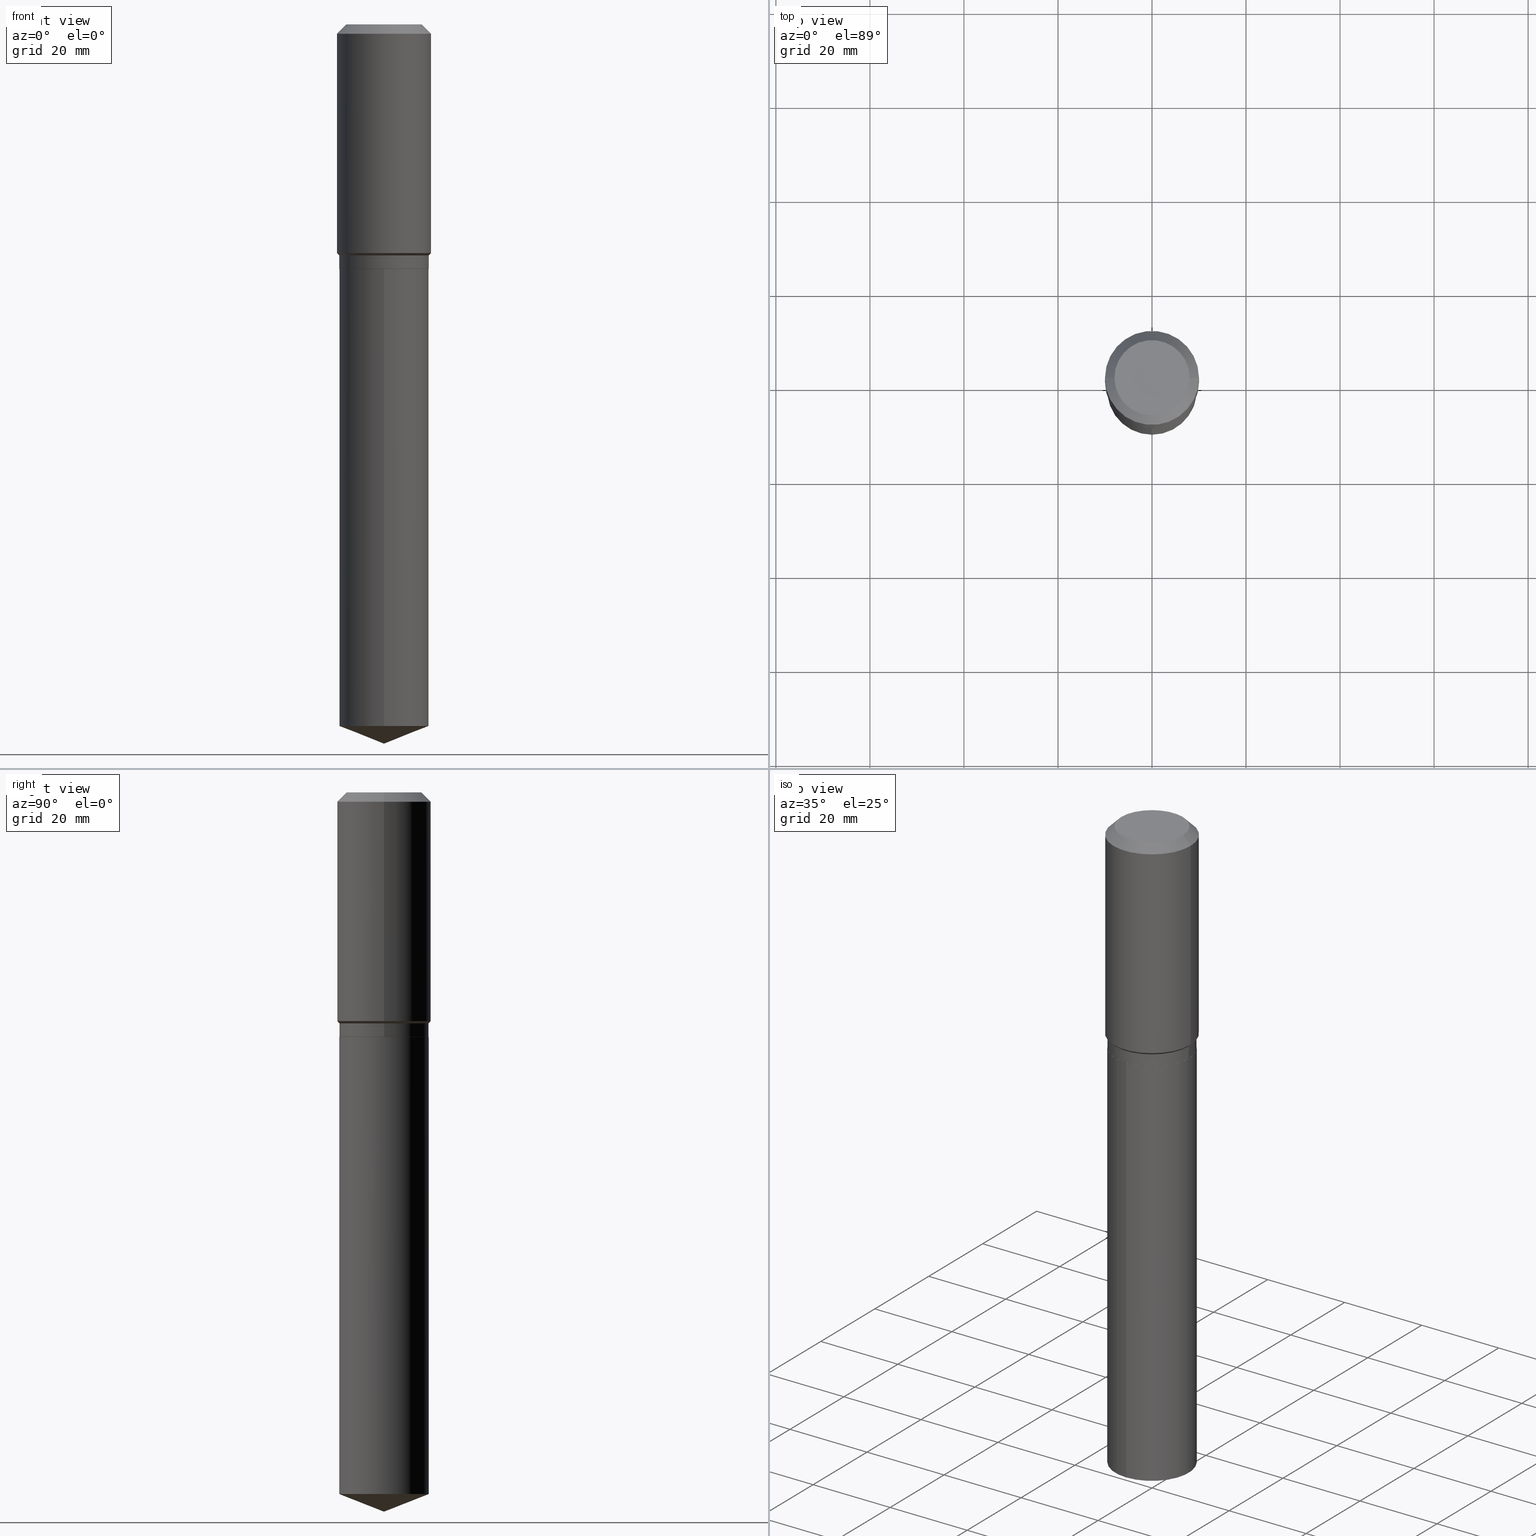
[diagram: canonical four-view strip — front | top / right | iso, engineering-drawing reading convention]
A machine part, canonical four-view strip (front | top / right | iso — engineering-drawing reading convention). The complete STEP part file that produces these views, byte-faithful:
ISO-10303-21;
HEADER;
FILE_DESCRIPTION (( 'STEP AP203' ),
    '1' );
FILE_NAME ('56471.STEP',
    '2024-04-24T18:11:45',
    ( '' ),
    ( '' ),
    'SwSTEP 2.0',
    'SolidWorks 2023',
    '' );
FILE_SCHEMA (( 'CONFIG_CONTROL_DESIGN' ));
ENDSEC;

DATA;
#1 = AXIS2_PLACEMENT_3D ( 'NONE', #132, #178, #333 ) ;
#2 = CC_DESIGN_DATE_AND_TIME_ASSIGNMENT ( #422, #16, ( #370 ) ) ;
#3 = CARTESIAN_POINT ( 'NONE',  ( 1.925562137990188729E-30, -2.749192406205110629E-16, -0.07874000000000049015 ) ) ;
#4 = VERTEX_POINT ( 'NONE', #54 ) ;
#5 = FACE_OUTER_BOUND ( 'NONE', #416, .T. ) ;
#6 = DIRECTION ( 'NONE',  ( -6.982962677686265922E-15, -1.000000000000000000, 3.498627837350006195E-15 ) ) ;
#7 = CARTESIAN_POINT ( 'NONE',  ( 0.3745000000000000551, -9.764276712208733992E-15, -2.047600000000000531 ) ) ;
#8 = CARTESIAN_POINT ( 'NONE',  ( 4.732226686848858615E-29, -6.756365538795372113E-15, -1.935100000000000264 ) ) ;
#9 = LOCAL_TIME ( 14, 11, 45.00000000000000000, #414 ) ;
#10 = EDGE_LOOP ( 'NONE', ( #456, #379, #180, #446 ) ) ;
#11 = CARTESIAN_POINT ( 'NONE',  ( 4.732226686848858615E-29, -6.756365538795372113E-15, -1.935100000000000264 ) ) ;
#12 = FACE_OUTER_BOUND ( 'NONE', #68, .T. ) ;
#13 = APPLICATION_CONTEXT ( 'configuration controlled 3d designs of mechanical parts and assemblies' ) ;
#14 = ADVANCED_FACE ( 'NONE', ( #12 ), #161, .T. ) ;
#15 = MANIFOLD_SOLID_BREP ( 'Body-Move/Copy2[2]', #214 ) ;
#16 = DATE_TIME_ROLE ( 'creation_date' ) ;
#17 = ORIENTED_EDGE ( 'NONE', *, *, #96, .T. ) ;
#18 = DIRECTION ( 'NONE',  ( -2.445291597268373116E-29, 3.491735112098055951E-15, 1.000000000000000000 ) ) ;
#19 = ORIENTED_EDGE ( 'NONE', *, *, #158, .T. ) ;
#20 = CIRCLE ( 'NONE', #126, 0.3937000000000000499 ) ;
#21 = DIRECTION ( 'NONE',  ( 1.000000000000000000, -6.982962677686266711E-15, 4.876176775795935793E-29 ) ) ;
#22 = DIRECTION ( 'NONE',  ( -2.445468806185136597E-29, 3.491481338843145583E-15, 1.000000000000000000 ) ) ;
#23 = PERSON ( 'UNSPECIFIED', 'UNSPECIFIED', 'UNSPECIFIED', ('UNSPECIFIED'), ('UNSPECIFIED'), ('UNSPECIFIED') ) ;
#24 =( NAMED_UNIT ( * ) PLANE_ANGLE_UNIT ( ) SI_UNIT ( $, .RADIAN. ) );
#25 = DIRECTION ( 'NONE',  ( -2.445468806185136597E-29, 3.491481338843145583E-15, 1.000000000000000000 ) ) ;
#26 = CARTESIAN_POINT ( 'NONE',  ( -9.427742298522567634E-47, 1.346031739168368355E-32, 3.855188123715870730E-18 ) ) ;
#27 = DIRECTION ( 'NONE',  ( -0.7071067811865453523, 2.468850131082234184E-15, -0.7071067811865496822 ) ) ;
#28 = APPROVAL_ROLE ( '' ) ;
#29 = VECTOR ( 'NONE', #106, 39.37007874015747433 ) ;
#30 = ADVANCED_FACE ( 'NONE', ( #160 ), #166, .T. ) ;
#31 = EDGE_CURVE ( 'NONE', #48, #217, #90, .T. ) ;
#32 = DIRECTION ( 'NONE',  ( -2.445468806185136597E-29, 3.491481338843145583E-15, 1.000000000000000000 ) ) ;
#33 = DIRECTION ( 'NONE',  ( -6.982962677686265922E-15, -1.000000000000000000, 2.913971193241880372E-15 ) ) ;
#34 = ORIENTED_EDGE ( 'NONE', *, *, #37, .T. ) ;
#35 = AXIS2_PLACEMENT_3D ( 'NONE', #363, #352, #391 ) ;
#36 = CC_DESIGN_APPROVAL ( #291, ( #370 ) ) ;
#37 = EDGE_CURVE ( 'NONE', #88, #48, #390, .T. ) ;
#38 = DIRECTION ( 'NONE',  ( 0.7071067811865474617, -2.468850131082256666E-15, 0.7071067811865474617 ) ) ;
#39 = VERTEX_POINT ( 'NONE', #453 ) ;
#40 = ORIENTED_EDGE ( 'NONE', *, *, #202, .F. ) ;
#41 = EDGE_CURVE ( 'NONE', #217, #4, #235, .T. ) ;
#42 = AXIS2_PLACEMENT_3D ( 'NONE', #410, #140, #69 ) ;
#43 = DIRECTION ( 'NONE',  ( 1.000000000000000000, -6.982962677686269077E-15, 0.000000000000000000 ) ) ;
#44 = CLOSED_SHELL ( 'NONE', ( #115, #30, #457, #440, #278 ) ) ;
#45 = VERTEX_POINT ( 'NONE', #201 ) ;
#46 = DIRECTION ( 'NONE',  ( -2.445291597268373116E-29, 3.491735112098055951E-15, 1.000000000000000000 ) ) ;
#47 = DIRECTION ( 'NONE',  ( -2.445291597268373116E-29, 3.491735112098055951E-15, 1.000000000000000000 ) ) ;
#48 = VERTEX_POINT ( 'NONE', #359 ) ;
#49 = FACE_OUTER_BOUND ( 'NONE', #488, .T. ) ;
#50 = ORIENTED_EDGE ( 'NONE', *, *, #397, .T. ) ;
#51 = CIRCLE ( 'NONE', #231, 0.3937000000000000499 ) ;
#52 = DIRECTION ( 'NONE',  ( -0.7071067811865474617, 7.493145998870352582E-15, 0.7071067811865474617 ) ) ;
#53 = ORGANIZATION ( 'UNSPECIFIED', 'UNSPECIFIED', '' ) ;
#54 = CARTESIAN_POINT ( 'NONE',  ( -0.3937000000000002164, -3.893668087071488360E-15, -1.916400000000000103 ) ) ;
#55 = APPROVAL_STATUS ( 'not_yet_approved' ) ;
#56 = DIRECTION ( 'NONE',  ( -1.000000000000000000, 6.982962677686265922E-15, 0.000000000000000000 ) ) ;
#57 = CIRCLE ( 'NONE', #119, 0.3149600000000000177 ) ;
#58 = CARTESIAN_POINT ( 'NONE',  ( 4.732226686848858615E-29, -6.756365538795372113E-15, -1.935100000000000264 ) ) ;
#59 = FACE_OUTER_BOUND ( 'NONE', #67, .T. ) ;
#60 =( NAMED_UNIT ( * ) SI_UNIT ( $, .STERADIAN. ) SOLID_ANGLE_UNIT ( ) );
#61 = ORIENTED_EDGE ( 'NONE', *, *, #41, .F. ) ;
#62 = FACE_OUTER_BOUND ( 'NONE', #382, .T. ) ;
#63 = EDGE_CURVE ( 'NONE', #324, #274, #268, .T. ) ;
#64 = VECTOR ( 'NONE', #451, 39.37007874015748143 ) ;
#65 = VECTOR ( 'NONE', #276, 39.37007874015748143 ) ;
#66 = APPROVAL_PERSON_ORGANIZATION ( #187, #78, #111 ) ;
#67 = EDGE_LOOP ( 'NONE', ( #412, #50, #208 ) ) ;
#68 = EDGE_LOOP ( 'NONE', ( #34, #225, #279, #72 ) ) ;
#69 = DIRECTION ( 'NONE',  ( 1.000000000000000000, -6.982962677686265922E-15, 0.000000000000000000 ) ) ;
#70 = CALENDAR_DATE ( 2024, 24, 4 ) ;
#71 = VECTOR ( 'NONE', #474, 39.37007874015748143 ) ;
#72 = ORIENTED_EDGE ( 'NONE', *, *, #428, .F. ) ;
#73 = ADVANCED_FACE ( 'NONE', ( #393 ), #230, .T. ) ;
#74 = LINE ( 'NONE', #408, #102 ) ;
#75 = ORIENTED_EDGE ( 'NONE', *, *, #31, .F. ) ;
#76 = DIRECTION ( 'NONE',  ( 0.7071067811864992780, -2.468850131081751401E-15, 0.7071067811865957564 ) ) ;
#77 = CARTESIAN_POINT ( 'NONE',  ( 4.686496420173195799E-29, -6.691074837759004724E-15, -1.916400000000000103 ) ) ;
#78 = APPROVAL ( #384, 'UNSPECIFIED' ) ;
#79 = EDGE_LOOP ( 'NONE', ( #427, #297, #348, #399 ) ) ;
#80 = DIRECTION ( 'NONE',  ( -2.445468806185136597E-29, 3.491481338843145583E-15, 1.000000000000000000 ) ) ;
#81 = DIRECTION ( 'NONE',  ( -2.445291597268373116E-29, 3.491735112098055951E-15, 1.000000000000000000 ) ) ;
#82 = ORIENTED_EDGE ( 'NONE', *, *, #123, .F. ) ;
#83 = ADVANCED_FACE ( 'NONE', ( #49 ), #197, .F. ) ;
#84 = CIRCLE ( 'NONE', #327, 0.3749999999999999445 ) ;
#85 = LOCAL_TIME ( 14, 11, 45.00000000000000000, #205 ) ;
#86 = ORIENTED_EDGE ( 'NONE', *, *, #123, .T. ) ;
#87 = DIRECTION ( 'NONE',  ( -2.445468806185136597E-29, 3.491481338843145583E-15, 1.000000000000000000 ) ) ;
#88 = VERTEX_POINT ( 'NONE', #317 ) ;
#89 = PERSON_AND_ORGANIZATION ( #23, #53 ) ;
#90 = LINE ( 'NONE', #153, #65 ) ;
#91 = CARTESIAN_POINT ( 'NONE',  ( 0.3749999999999999445, -9.374976542927722130E-15, -1.935100000000000264 ) ) ;
#92 = EDGE_LOOP ( 'NONE', ( #485, #447, #392, #417 ) ) ;
#93 = ADVANCED_FACE ( 'NONE', ( #362 ), #260, .T. ) ;
#94 = AXIS2_PLACEMENT_3D ( 'NONE', #436, #22, #431 ) ;
#95 = SECURITY_CLASSIFICATION_LEVEL ( 'unclassified' ) ;
#96 = EDGE_CURVE ( 'NONE', #217, #486, #84, .T. ) ;
#97 = FACE_OUTER_BOUND ( 'NONE', #407, .T. ) ;
#98 = AXIS2_PLACEMENT_3D ( 'NONE', #120, #87, #236 ) ;
#99 = EDGE_CURVE ( 'NONE', #4, #192, #353, .T. ) ;
#100 = DIRECTION ( 'NONE',  ( -6.982962677686265922E-15, -1.000000000000000000, 3.642463991552350169E-15 ) ) ;
#101 = CARTESIAN_POINT ( 'NONE',  ( -2.618611004132299924E-15, -0.3750000000000072164, -2.047599999999998754 ) ) ;
#102 = VECTOR ( 'NONE', #179, 39.37007874015748143 ) ;
#103 = AXIS2_PLACEMENT_3D ( 'NONE', #281, #32, #438 ) ;
#104 = LOCAL_TIME ( 14, 11, 45.00000000000000000, #403 ) ;
#105 = CARTESIAN_POINT ( 'NONE',  ( -9.427742298522567634E-47, 1.346031739168368355E-32, 3.855188123715870730E-18 ) ) ;
#106 = DIRECTION ( 'NONE',  ( 6.611014441532068167E-15, 0.9304175679820272382, 0.3665012267242907518 ) ) ;
#107 = CARTESIAN_POINT ( 'NONE',  ( -4.713871149261283817E-47, 6.730158695841841775E-33, 1.927594061857935365E-18 ) ) ;
#108 = DATE_AND_TIME ( #145, #85 ) ;
#109 = EDGE_LOOP ( 'NONE', ( #366, #425, #116 ) ) ;
#110 = CARTESIAN_POINT ( 'NONE',  ( 2.664535259100520059E-15, 0.3749999999999928391, -2.047600000000001863 ) ) ;
#111 = APPROVAL_ROLE ( '' ) ;
#112 = ORIENTED_EDGE ( 'NONE', *, *, #253, .F. ) ;
#113 = CC_DESIGN_PERSON_AND_ORGANIZATION_ASSIGNMENT ( #310, #243, ( #370 ) ) ;
#114 = PERSON_AND_ORGANIZATION ( #23, #53 ) ;
#115 = ADVANCED_FACE ( 'NONE', ( #5 ), #314, .T. ) ;
#116 = ORIENTED_EDGE ( 'NONE', *, *, #212, .F. ) ;
#117 = CARTESIAN_POINT ( 'NONE',  ( 4.686496420173195799E-29, -6.691074837759004724E-15, -1.916400000000000103 ) ) ;
#118 = VERTEX_POINT ( 'NONE', #450 ) ;
#119 = AXIS2_PLACEMENT_3D ( 'NONE', #26, #177, #309 ) ;
#120 = CARTESIAN_POINT ( 'NONE',  ( 0.000000000000000000, 0.000000000000000000, 0.000000000000000000 ) ) ;
#121 = DIRECTION ( 'NONE',  ( 1.000000000000000000, -6.982962677686265133E-15, 0.000000000000000000 ) ) ;
#122 = DIRECTION ( 'NONE',  ( -2.445468806185136597E-29, 3.491481338843145583E-15, 1.000000000000000000 ) ) ;
#123 = EDGE_CURVE ( 'NONE', #184, #39, #20, .T. ) ;
#124 = CARTESIAN_POINT ( 'NONE',  ( -8.154052329217865589E-28, 1.164361936139111497E-13, 33.34607874015748052 ) ) ;
#125 = VECTOR ( 'NONE', #52, 39.37007874015748854 ) ;
#126 = AXIS2_PLACEMENT_3D ( 'NONE', #3, #358, #267 ) ;
#127 = EDGE_CURVE ( 'NONE', #39, #184, #51, .T. ) ;
#128 = CARTESIAN_POINT ( 'NONE',  ( 0.3749999999999999445, -9.374976542927722130E-15, -1.935100000000000264 ) ) ;
#129 = CARTESIAN_POINT ( 'NONE',  ( 0.3937000000000000499, -3.024111646825594378E-15, -0.07874000000000049015 ) ) ;
#130 = LENGTH_MEASURE_WITH_UNIT ( LENGTH_MEASURE( 0.02539999999999999897 ), #337 );
#131 = CARTESIAN_POINT ( 'NONE',  ( 1.925562137990188729E-30, -2.749192406205110629E-16, -0.07874000000000049015 ) ) ;
#132 = CARTESIAN_POINT ( 'NONE',  ( 5.007341927544686818E-29, -7.149157189415226982E-15, -2.047600000000000531 ) ) ;
#133 = DIRECTION ( 'NONE',  ( 1.000000000000000000, -6.982962677686265922E-15, 0.000000000000000000 ) ) ;
#134 = VECTOR ( 'NONE', #38, 39.37007874015748854 ) ;
#135 = ORIENTED_EDGE ( 'NONE', *, *, #241, .T. ) ;
#136 = LINE ( 'NONE', #252, #71 ) ;
#137 = DIRECTION ( 'NONE',  ( 0.000000000000000000, 0.000000000000000000, 1.000000000000000000 ) ) ;
#138 = CARTESIAN_POINT ( 'NONE',  ( -0.3745000000000000551, -4.488174643993650606E-15, -2.047600000000000531 ) ) ;
#139 = CIRCLE ( 'NONE', #426, 0.3750000000000000555 ) ;
#140 = DIRECTION ( 'NONE',  ( -2.445468806185136597E-29, 3.491481338843145583E-15, 1.000000000000000000 ) ) ;
#141 = ORIENTED_EDGE ( 'NONE', *, *, #294, .T. ) ;
#142 = APPLICATION_PROTOCOL_DEFINITION ( 'international standard', 'config_control_design', 1994, #13 ) ;
#143 = DIRECTION ( 'NONE',  ( 1.000000000000000000, -6.982962677686265922E-15, 4.876223630392693006E-29 ) ) ;
#144 = DIRECTION ( 'NONE',  ( -2.445468806185136597E-29, 3.491481338843145583E-15, 1.000000000000000000 ) ) ;
#145 = CALENDAR_DATE ( 2024, 24, 4 ) ;
#146 = AXIS2_PLACEMENT_3D ( 'NONE', #461, #335, #133 ) ;
#147 = EDGE_CURVE ( 'NONE', #192, #4, #280, .T. ) ;
#148 = DIRECTION ( 'NONE',  ( 1.000000000000000000, -6.982962677686265133E-15, 0.000000000000000000 ) ) ;
#149 = UNCERTAINTY_MEASURE_WITH_UNIT (LENGTH_MEASURE( 1.000000000000000082E-05 ), #284, 'distance_accuracy_value', 'NONE');
#150 = EDGE_LOOP ( 'NONE', ( #75, #270, #329, #405 ) ) ;
#151 = CARTESIAN_POINT ( 'NONE',  ( 0.3937000000000000499, -2.975897302343163203E-15, -0.07874000000000049015 ) ) ;
#152 = ORIENTED_EDGE ( 'NONE', *, *, #164, .T. ) ;
#153 = CARTESIAN_POINT ( 'NONE',  ( -0.3749999999999999445, 2.664535259100375303E-15, -1.844600658845589318E-29 ) ) ;
#154 = AXIS2_PLACEMENT_3D ( 'NONE', #347, #18, #305 ) ;
#155 = DIRECTION ( 'NONE',  ( -2.445468806185136597E-29, 3.491481338843145583E-15, 1.000000000000000000 ) ) ;
#156 = SECURITY_CLASSIFICATION ( '', '', #95 ) ;
#157 = DIRECTION ( 'NONE',  ( 1.000000000000000000, -6.982962677686266711E-15, 4.876176775795935793E-29 ) ) ;
#158 = EDGE_CURVE ( 'NONE', #45, #184, #194, .T. ) ;
#159 = DIRECTION ( 'NONE',  ( -6.982962677686265922E-15, -1.000000000000000000, 3.642463991552350169E-15 ) ) ;
#160 = FACE_OUTER_BOUND ( 'NONE', #109, .T. ) ;
#161 = CYLINDRICAL_SURFACE ( 'NONE', #282, 0.3749999999999999445 ) ;
#162 = CC_DESIGN_PERSON_AND_ORGANIZATION_ASSIGNMENT ( #89, #265, ( #156 ) ) ;
#163 = DATE_AND_TIME ( #70, #289 ) ;
#164 = EDGE_CURVE ( 'NONE', #486, #217, #222, .T. ) ;
#165 = CC_DESIGN_APPROVAL ( #411, ( #251 ) ) ;
#166 = CONICAL_SURFACE ( 'NONE', #234, 99.94676754583991851, 1.195550537616119291 ) ;
#167 = FACE_OUTER_BOUND ( 'NONE', #237, .T. ) ;
#168 = DATE_AND_TIME ( #219, #9 ) ;
#169 = ADVANCED_BREP_SHAPE_REPRESENTATION ( '56471', ( #350, #15, #233 ), #299 ) ;
#170 = DIRECTION ( 'NONE',  ( -1.000000000000000000, 6.982962677686265922E-15, -4.876176775795935793E-29 ) ) ;
#171 = VECTOR ( 'NONE', #300, 39.37007874015748143 ) ;
#172 = EDGE_CURVE ( 'NONE', #246, #203, #439, .T. ) ;
#173 = CC_DESIGN_APPROVAL ( #78, ( #156 ) ) ;
#174 = CARTESIAN_POINT ( 'NONE',  ( -8.154052329217865589E-28, 1.164361936139111497E-13, 33.34607874015748052 ) ) ;
#175 = PERSON_AND_ORGANIZATION_ROLE ( 'design_owner' ) ;
#176 = ADVANCED_FACE ( 'NONE', ( #467 ), #288, .T. ) ;
#177 = DIRECTION ( 'NONE',  ( -2.445468806185136597E-29, 3.491481338843145583E-15, 1.000000000000000000 ) ) ;
#178 = DIRECTION ( 'NONE',  ( -2.445291597268373116E-29, 3.491735112098055951E-15, 1.000000000000000000 ) ) ;
#179 = DIRECTION ( 'NONE',  ( -2.445468806185136877E-29, 3.491481338843145188E-15, 1.000000000000000000 ) ) ;
#180 = ORIENTED_EDGE ( 'NONE', *, *, #421, .T. ) ;
#181 = DIRECTION ( 'NONE',  ( -2.445468806185136877E-29, 3.491481338843145188E-15, 1.000000000000000000 ) ) ;
#182 = CARTESIAN_POINT ( 'NONE',  ( -0.3745000000000000551, -4.485525416819539405E-15, -2.047600000000000531 ) ) ;
#183 = PERSON_AND_ORGANIZATION ( #23, #53 ) ;
#184 = VERTEX_POINT ( 'NONE', #129 ) ;
#185 = DIRECTION ( 'NONE',  ( 2.438088387897960049E-29, -3.491481338843145188E-15, -1.000000000000000000 ) ) ;
#186 = CARTESIAN_POINT ( 'NONE',  ( -0.3749999999999999445, -4.287353234670213494E-15, -1.935100000000000264 ) ) ;
#187 = PERSON_AND_ORGANIZATION ( #23, #53 ) ;
#188 = ORIENTED_EDGE ( 'NONE', *, *, #147, .T. ) ;
#189 = ADVANCED_FACE ( 'NONE', ( #97 ), #210, .T. ) ;
#190 = LINE ( 'NONE', #389, #377 ) ;
#191 = CIRCLE ( 'NONE', #250, 0.3750000000000000555 ) ;
#192 = VERTEX_POINT ( 'NONE', #330 ) ;
#193 = VECTOR ( 'NONE', #181, 39.37007874015748143 ) ;
#194 = LINE ( 'NONE', #151, #64 ) ;
#195 = DIRECTION ( 'NONE',  ( -2.445468806185136597E-29, 3.491481338843145583E-15, 1.000000000000000000 ) ) ;
#196 = DIRECTION ( 'NONE',  ( -2.445468806185136597E-29, 3.491481338843145583E-15, 1.000000000000000000 ) ) ;
#197 = PLANE ( 'NONE',  #35 ) ;
#198 = CARTESIAN_POINT ( 'NONE',  ( 0.000000000000000000, 0.000000000000000000, 0.000000000000000000 ) ) ;
#199 = AXIS2_PLACEMENT_3D ( 'NONE', #249, #259, #380 ) ;
#200 = DIRECTION ( 'NONE',  ( -2.445468806185136597E-29, 3.491481338843145583E-15, 1.000000000000000000 ) ) ;
#201 = CARTESIAN_POINT ( 'NONE',  ( 0.3149600000000000177, -2.568339875860642378E-15, 3.855188123732540039E-18 ) ) ;
#202 = EDGE_CURVE ( 'NONE', #477, #318, #332, .T. ) ;
#203 = VERTEX_POINT ( 'NONE', #7 ) ;
#204 = DIRECTION ( 'NONE',  ( 1.000000000000000000, -6.982962677686269077E-15, 0.000000000000000000 ) ) ;
#205 = COORDINATED_UNIVERSAL_TIME_OFFSET ( 5, 0, .BEHIND. ) ;
#206 = CARTESIAN_POINT ( 'NONE',  ( -0.3749999999999999445, -4.091830279694997205E-15, -1.935100000000000264 ) ) ;
#207 = ADVANCED_FACE ( 'NONE', ( #319 ), #454, .T. ) ;
#208 = ORIENTED_EDGE ( 'NONE', *, *, #338, .F. ) ;
#209 = CYLINDRICAL_SURFACE ( 'NONE', #345, 0.3937000000000001054 ) ;
#210 = CONICAL_SURFACE ( 'NONE', #311, 0.3937000000000000499, 0.7853981633974452814 ) ;
#211 = AXIS2_PLACEMENT_3D ( 'NONE', #107, #185, #170 ) ;
#212 = EDGE_CURVE ( 'NONE', #477, #324, #409, .T. ) ;
#213 = AXIS2_PLACEMENT_3D ( 'NONE', #58, #25, #204 ) ;
#214 = CLOSED_SHELL ( 'NONE', ( #269, #189, #207, #93, #14, #73, #176, #475, #478, #462, #83, #263 ) ) ;
#215 = EDGE_CURVE ( 'NONE', #486, #192, #386, .T. ) ;
#216 = DIRECTION ( 'NONE',  ( 1.000000000000000000, -6.982962677686265922E-15, 0.000000000000000000 ) ) ;
#217 = VERTEX_POINT ( 'NONE', #186 ) ;
#218 = CARTESIAN_POINT ( 'NONE',  ( -0.3149600000000000177, 2.336813545274319235E-15, 3.855188123700009542E-18 ) ) ;
#219 = CALENDAR_DATE ( 2024, 24, 4 ) ;
#220 = ORIENTED_EDGE ( 'NONE', *, *, #41, .T. ) ;
#221 = CARTESIAN_POINT ( 'NONE',  ( -0.3937000000000000499, 2.474273165584572449E-15, -0.07874000000000049015 ) ) ;
#222 = CIRCLE ( 'NONE', #213, 0.3749999999999999445 ) ;
#223 = DATE_TIME_ROLE ( 'classification_date' ) ;
#224 = CARTESIAN_POINT ( 'NONE',  ( 1.473116865148521756E-28, -2.103317306304518256E-14, -6.024000000000000021 ) ) ;
#225 = ORIENTED_EDGE ( 'NONE', *, *, #31, .T. ) ;
#226 = CARTESIAN_POINT ( 'NONE',  ( 5.007341927544686818E-29, -7.149157189415226982E-15, -2.047600000000000531 ) ) ;
#227 = CARTESIAN_POINT ( 'NONE',  ( 0.3749999999999999445, -2.618611004132349622E-15, 1.828566290923475642E-29 ) ) ;
#228 = PRODUCT_DEFINITION_SHAPE ( 'NONE', 'NONE',  #370 ) ;
#229 = DIRECTION ( 'NONE',  ( -2.445468806185136597E-29, 3.491481338843145583E-15, 1.000000000000000000 ) ) ;
#230 = CYLINDRICAL_SURFACE ( 'NONE', #98, 0.3749999999999999445 ) ;
#231 = AXIS2_PLACEMENT_3D ( 'NONE', #323, #200, #368 ) ;
#232 = ORIENTED_EDGE ( 'NONE', *, *, #212, .T. ) ;
#233 = AXIS2_PLACEMENT_3D ( 'NONE', #481, #137, #342 ) ;
#234 = AXIS2_PLACEMENT_3D ( 'NONE', #124, #360, #6 ) ;
#235 = LINE ( 'NONE', #206, #125 ) ;
#236 = DIRECTION ( 'NONE',  ( 1.000000000000000000, -6.982962677686266711E-15, 4.876176775795935793E-29 ) ) ;
#237 = EDGE_LOOP ( 'NONE', ( #341, #255, #244, #286 ) ) ;
#238 = DATE_AND_TIME ( #307, #406 ) ;
#239 = CIRCLE ( 'NONE', #471, 0.3745000000000000551 ) ;
#240 = DIRECTION ( 'NONE',  ( 1.000000000000000000, -6.982962677686264344E-15, 0.000000000000000000 ) ) ;
#241 = EDGE_CURVE ( 'NONE', #274, #318, #365, .T. ) ;
#242 = ORIENTED_EDGE ( 'NONE', *, *, #253, .T. ) ;
#243 = PERSON_AND_ORGANIZATION_ROLE ( 'creator' ) ;
#244 = ORIENTED_EDGE ( 'NONE', *, *, #357, .T. ) ;
#245 = VECTOR ( 'NONE', #420, 39.37007874015748854 ) ;
#246 = VERTEX_POINT ( 'NONE', #182 ) ;
#247 = EDGE_CURVE ( 'NONE', #192, #184, #136, .T. ) ;
#248 = CC_DESIGN_DATE_AND_TIME_ASSIGNMENT ( #163, #223, ( #156 ) ) ;
#249 = CARTESIAN_POINT ( 'NONE',  ( 5.007341927544686818E-29, -7.149157189415226982E-15, -2.047600000000000531 ) ) ;
#250 = AXIS2_PLACEMENT_3D ( 'NONE', #256, #418, #100 ) ;
#251 = PRODUCT_DEFINITION_FORMATION_WITH_SPECIFIED_SOURCE ( 'ANY', '', #315, .NOT_KNOWN. ) ;
#252 = CARTESIAN_POINT ( 'NONE',  ( 0.3937000000000001054, -2.749192406205084005E-15, 1.919750796630860452E-29 ) ) ;
#253 = EDGE_CURVE ( 'NONE', #318, #274, #191, .T. ) ;
#254 = CARTESIAN_POINT ( 'NONE',  ( 5.007341927544686818E-29, -7.149157189415226982E-15, -2.047600000000000531 ) ) ;
#255 = ORIENTED_EDGE ( 'NONE', *, *, #401, .F. ) ;
#256 = CARTESIAN_POINT ( 'NONE',  ( 5.007341927544686818E-29, -7.149157189415226982E-15, -2.047600000000000531 ) ) ;
#257 = COORDINATED_UNIVERSAL_TIME_OFFSET ( 5, 0, .BEHIND. ) ;
#258 = DESIGN_CONTEXT ( 'detailed design', #424, 'design' ) ;
#259 = DIRECTION ( 'NONE',  ( 2.445291597268372836E-29, -3.491735112098055951E-15, -1.000000000000000000 ) ) ;
#260 = CONICAL_SURFACE ( 'NONE', #444, 0.3749999999999999445, 0.7853981633974482790 ) ;
#261 = PERSON_AND_ORGANIZATION ( #23, #53 ) ;
#262 = EDGE_LOOP ( 'NONE', ( #301, #361 ) ) ;
#263 = ADVANCED_FACE ( 'NONE', ( #292 ), #463, .T. ) ;
#264 = LINE ( 'NONE', #449, #245 ) ;
#265 = PERSON_AND_ORGANIZATION_ROLE ( 'classification_officer' ) ;
#266 = ORIENTED_EDGE ( 'NONE', *, *, #63, .T. ) ;
#267 = DIRECTION ( 'NONE',  ( 1.000000000000000000, -6.982962677686265922E-15, 0.000000000000000000 ) ) ;
#268 = LINE ( 'NONE', #459, #344 ) ;
#269 = ADVANCED_FACE ( 'NONE', ( #62 ), #372, .T. ) ;
#270 = ORIENTED_EDGE ( 'NONE', *, *, #437, .T. ) ;
#271 = DIRECTION ( 'NONE',  ( -2.445468806185136597E-29, 3.491481338843145583E-15, 1.000000000000000000 ) ) ;
#272 = CARTESIAN_POINT ( 'NONE',  ( -2.618611004132299924E-15, -0.3750000000000072164, -2.047599999999998754 ) ) ;
#273 = VECTOR ( 'NONE', #27, 39.37007874015748143 ) ;
#274 = VERTEX_POINT ( 'NONE', #110 ) ;
#275 = COORDINATED_UNIVERSAL_TIME_OFFSET ( 5, 0, .BEHIND. ) ;
#276 = DIRECTION ( 'NONE',  ( -2.445468806185136877E-29, 3.491481338843145188E-15, 1.000000000000000000 ) ) ;
#277 = DIRECTION ( 'NONE',  ( -2.445291597268373116E-29, 3.491735112098055951E-15, 1.000000000000000000 ) ) ;
#278 = ADVANCED_FACE ( 'NONE', ( #340 ), #296, .F. ) ;
#279 = ORIENTED_EDGE ( 'NONE', *, *, #164, .F. ) ;
#280 = CIRCLE ( 'NONE', #354, 0.3937000000000002164 ) ;
#281 = CARTESIAN_POINT ( 'NONE',  ( 5.006119193141594017E-29, -7.147411448745804690E-15, -2.047100000000000364 ) ) ;
#282 = AXIS2_PLACEMENT_3D ( 'NONE', #460, #122, #429 ) ;
#283 = APPROVAL_PERSON_ORGANIZATION ( #183, #411, #484 ) ;
#284 =( CONVERSION_BASED_UNIT ( 'INCH', #130 ) LENGTH_UNIT ( ) NAMED_UNIT ( #400 ) );
#285 = ORIENTED_EDGE ( 'NONE', *, *, #357, .F. ) ;
#286 = ORIENTED_EDGE ( 'NONE', *, *, #127, .T. ) ;
#287 = ORIENTED_EDGE ( 'NONE', *, *, #99, .F. ) ;
#288 = CONICAL_SURFACE ( 'NONE', #94, 0.3749999999999999445, 0.7853981633974482790 ) ;
#289 = LOCAL_TIME ( 14, 11, 45.00000000000000000, #275 ) ;
#290 = PERSON_AND_ORGANIZATION ( #23, #53 ) ;
#291 = APPROVAL ( #435, 'UNSPECIFIED' ) ;
#292 = FACE_OUTER_BOUND ( 'NONE', #10, .T. ) ;
#293 = CARTESIAN_POINT ( 'NONE',  ( 0.000000000000000000, 0.000000000000000000, 0.000000000000000000 ) ) ;
#294 = EDGE_CURVE ( 'NONE', #4, #39, #74, .T. ) ;
#295 = PLANE ( 'NONE',  #211 ) ;
#296 = PLANE ( 'NONE',  #199 ) ;
#297 = ORIENTED_EDGE ( 'NONE', *, *, #99, .T. ) ;
#298 = AXIS2_PLACEMENT_3D ( 'NONE', #458, #277, #430 ) ;
#299 =( GEOMETRIC_REPRESENTATION_CONTEXT ( 3 ) GLOBAL_UNCERTAINTY_ASSIGNED_CONTEXT ( ( #149 ) ) GLOBAL_UNIT_ASSIGNED_CONTEXT ( ( #284, #24, #60 ) ) REPRESENTATION_CONTEXT ( 'NONE', 'WORKASPACE' ) );
#300 = DIRECTION ( 'NONE',  ( -0.7071067811864992780, 7.493145998870180611E-15, 0.7071067811865957564 ) ) ;
#301 = ORIENTED_EDGE ( 'NONE', *, *, #401, .T. ) ;
#302 = MECHANICAL_CONTEXT ( 'NONE', #13, 'mechanical' ) ;
#303 = LINE ( 'NONE', #221, #273 ) ;
#304 = EDGE_CURVE ( 'NONE', #246, #48, #479, .T. ) ;
#305 = DIRECTION ( 'NONE',  ( -6.982962677686265922E-15, -1.000000000000000000, 3.642463991552350169E-15 ) ) ;
#306 = EDGE_CURVE ( 'NONE', #118, #324, #443, .T. ) ;
#307 = CALENDAR_DATE ( 2024, 24, 4 ) ;
#308 = ORIENTED_EDGE ( 'NONE', *, *, #421, .F. ) ;
#309 = DIRECTION ( 'NONE',  ( 1.000000000000000000, -6.982962677686265922E-15, 4.876223630392693006E-29 ) ) ;
#310 = PERSON_AND_ORGANIZATION ( #23, #53 ) ;
#311 = AXIS2_PLACEMENT_3D ( 'NONE', #131, #402, #56 ) ;
#312 = EDGE_LOOP ( 'NONE', ( #242, #135 ) ) ;
#313 = EDGE_CURVE ( 'NONE', #203, #246, #239, .T. ) ;
#314 = CYLINDRICAL_SURFACE ( 'NONE', #334, 0.3750000000000000555 ) ;
#315 = PRODUCT ( '56471', '56471', '', ( #302 ) ) ;
#316 = EDGE_LOOP ( 'NONE', ( #188, #141, #82, #394 ) ) ;
#317 = CARTESIAN_POINT ( 'NONE',  ( 0.3749999999999998890, -9.766022452878153129E-15, -2.047100000000000364 ) ) ;
#318 = VERTEX_POINT ( 'NONE', #101 ) ;
#319 = FACE_OUTER_BOUND ( 'NONE', #316, .T. ) ;
#320 = CIRCLE ( 'NONE', #383, 0.3149600000000000177 ) ;
#321 = ORIENTED_EDGE ( 'NONE', *, *, #215, .T. ) ;
#322 = CC_DESIGN_SECURITY_CLASSIFICATION ( #156, ( #251 ) ) ;
#323 = CARTESIAN_POINT ( 'NONE',  ( 1.925562137990188729E-30, -2.749192406205110629E-16, -0.07874000000000049015 ) ) ;
#324 = VERTEX_POINT ( 'NONE', #483 ) ;
#325 = EDGE_LOOP ( 'NONE', ( #61, #17, #321, #287 ) ) ;
#326 = APPROVAL_DATE_TIME ( #238, #78 ) ;
#327 = AXIS2_PLACEMENT_3D ( 'NONE', #11, #271, #490 ) ;
#328 = VERTEX_POINT ( 'NONE', #218 ) ;
#329 = ORIENTED_EDGE ( 'NONE', *, *, #428, .T. ) ;
#330 = CARTESIAN_POINT ( 'NONE',  ( 0.3937000000000002164, -9.440267243964090308E-15, -1.916400000000000103 ) ) ;
#331 = ORIENTED_EDGE ( 'NONE', *, *, #313, .T. ) ;
#332 = LINE ( 'NONE', #272, #434 ) ;
#333 = DIRECTION ( 'NONE',  ( -6.982962677686265922E-15, -1.000000000000000000, 3.642463991552350169E-15 ) ) ;
#334 = AXIS2_PLACEMENT_3D ( 'NONE', #226, #46, #159 ) ;
#335 = DIRECTION ( 'NONE',  ( -2.445468806185136597E-29, 3.491481338843145583E-15, 1.000000000000000000 ) ) ;
#336 = APPROVAL_PERSON_ORGANIZATION ( #290, #291, #28 ) ;
#337 =( LENGTH_UNIT ( ) NAMED_UNIT ( * ) SI_UNIT ( $, .METRE. ) );
#338 = EDGE_CURVE ( 'NONE', #324, #477, #139, .T. ) ;
#339 = DIRECTION ( 'NONE',  ( -2.445291597268373116E-29, 3.491735112098055951E-15, 1.000000000000000000 ) ) ;
#340 = FACE_OUTER_BOUND ( 'NONE', #312, .T. ) ;
#341 = ORIENTED_EDGE ( 'NONE', *, *, #158, .F. ) ;
#342 = DIRECTION ( 'NONE',  ( 1.000000000000000000, 0.000000000000000000, 0.000000000000000000 ) ) ;
#343 = EDGE_LOOP ( 'NONE', ( #152, #220, #452, #387 ) ) ;
#344 = VECTOR ( 'NONE', #81, 39.37007874015748143 ) ;
#345 = AXIS2_PLACEMENT_3D ( 'NONE', #293, #371, #21 ) ;
#346 = DIRECTION ( 'NONE',  ( 1.000000000000000000, -6.982962677686265922E-15, 0.000000000000000000 ) ) ;
#347 = CARTESIAN_POINT ( 'NONE',  ( 5.007341927544686818E-29, -7.149157189415226982E-15, -2.047600000000000531 ) ) ;
#348 = ORIENTED_EDGE ( 'NONE', *, *, #247, .T. ) ;
#349 = CC_DESIGN_PERSON_AND_ORGANIZATION_ASSIGNMENT ( #261, #415, ( #251 ) ) ;
#350 = MANIFOLD_SOLID_BREP ( 'Body-Move/Copy2[1]', #44 ) ;
#351 = LINE ( 'NONE', #227, #193 ) ;
#352 = DIRECTION ( 'NONE',  ( -2.438088387897960049E-29, 3.491481338843145188E-15, 1.000000000000000000 ) ) ;
#353 = CIRCLE ( 'NONE', #404, 0.3937000000000002164 ) ;
#354 = AXIS2_PLACEMENT_3D ( 'NONE', #117, #229, #121 ) ;
#355 = ORIENTED_EDGE ( 'NONE', *, *, #172, .F. ) ;
#356 = AXIS2_PLACEMENT_3D ( 'NONE', #441, #375, #468 ) ;
#357 = EDGE_CURVE ( 'NONE', #328, #39, #303, .T. ) ;
#358 = DIRECTION ( 'NONE',  ( -2.445468806185136597E-29, 3.491481338843145583E-15, 1.000000000000000000 ) ) ;
#359 = CARTESIAN_POINT ( 'NONE',  ( -0.3749999999999998890, -4.287353234670213494E-15, -2.047100000000000364 ) ) ;
#360 = DIRECTION ( 'NONE',  ( -2.445291597268373116E-29, 3.491735112098055951E-15, 1.000000000000000000 ) ) ;
#361 = ORIENTED_EDGE ( 'NONE', *, *, #388, .T. ) ;
#362 = FACE_OUTER_BOUND ( 'NONE', #343, .T. ) ;
#363 = CARTESIAN_POINT ( 'NONE',  ( 5.007341927544686818E-29, -7.149157189415226982E-15, -2.047600000000000531 ) ) ;
#364 = DIRECTION ( 'NONE',  ( -2.445468806185136597E-29, 3.491481338843145583E-15, 1.000000000000000000 ) ) ;
#365 = CIRCLE ( 'NONE', #154, 0.3750000000000000555 ) ;
#366 = ORIENTED_EDGE ( 'NONE', *, *, #397, .F. ) ;
#367 = CONICAL_SURFACE ( 'NONE', #356, 0.3937000000000000499, 0.7853981633974452814 ) ;
#368 = DIRECTION ( 'NONE',  ( 1.000000000000000000, -6.982962677686265922E-15, 0.000000000000000000 ) ) ;
#369 = APPROVAL_DATE_TIME ( #108, #411 ) ;
#370 = PRODUCT_DEFINITION ( 'UNKNOWN', '', #251, #258 ) ;
#371 = DIRECTION ( 'NONE',  ( -2.445468806185136597E-29, 3.491481338843145583E-15, 1.000000000000000000 ) ) ;
#372 = CONICAL_SURFACE ( 'NONE', #395, 0.3745000000000000551, 0.7853981633973801113 ) ;
#373 = CIRCLE ( 'NONE', #103, 0.3749999999999998890 ) ;
#374 = DIRECTION ( 'NONE',  ( -6.982962677686265922E-15, -1.000000000000000000, 3.498627837350006195E-15 ) ) ;
#375 = DIRECTION ( 'NONE',  ( 2.445468806185136597E-29, -3.491481338843145583E-15, -1.000000000000000000 ) ) ;
#376 = AXIS2_PLACEMENT_3D ( 'NONE', #433, #195, #240 ) ;
#377 = VECTOR ( 'NONE', #76, 39.37007874015748143 ) ;
#378 = CARTESIAN_POINT ( 'NONE',  ( 5.007341927544686818E-29, -7.149157189415226982E-15, -2.047600000000000531 ) ) ;
#379 = ORIENTED_EDGE ( 'NONE', *, *, #172, .T. ) ;
#380 = DIRECTION ( 'NONE',  ( 6.982962677686265922E-15, 1.000000000000000000, -3.491735112098055951E-15 ) ) ;
#381 = DIRECTION ( 'NONE',  ( -2.445291597268373116E-29, 3.491735112098055951E-15, 1.000000000000000000 ) ) ;
#382 = EDGE_LOOP ( 'NONE', ( #331, #423, #466, #308 ) ) ;
#383 = AXIS2_PLACEMENT_3D ( 'NONE', #105, #80, #143 ) ;
#384 = APPROVAL_STATUS ( 'not_yet_approved' ) ;
#385 = PERSON_AND_ORGANIZATION ( #23, #53 ) ;
#386 = LINE ( 'NONE', #91, #134 ) ;
#387 = ORIENTED_EDGE ( 'NONE', *, *, #215, .F. ) ;
#388 = EDGE_CURVE ( 'NONE', #45, #328, #57, .T. ) ;
#389 = CARTESIAN_POINT ( 'NONE',  ( 0.3745000000000000551, -9.764276712208733992E-15, -2.047600000000000531 ) ) ;
#390 = CIRCLE ( 'NONE', #376, 0.3749999999999998890 ) ;
#391 = DIRECTION ( 'NONE',  ( 1.000000000000000000, -6.982962677686265922E-15, 4.876176775795935793E-29 ) ) ;
#392 = ORIENTED_EDGE ( 'NONE', *, *, #202, .T. ) ;
#393 = FACE_OUTER_BOUND ( 'NONE', #150, .T. ) ;
#394 = ORIENTED_EDGE ( 'NONE', *, *, #247, .F. ) ;
#395 = AXIS2_PLACEMENT_3D ( 'NONE', #378, #144, #216 ) ;
#396 = SHAPE_DEFINITION_REPRESENTATION ( #228, #169 ) ;
#397 = EDGE_CURVE ( 'NONE', #118, #477, #264, .T. ) ;
#398 = PRODUCT_RELATED_PRODUCT_CATEGORY ( 'detail', '', ( #315 ) ) ;
#399 = ORIENTED_EDGE ( 'NONE', *, *, #127, .F. ) ;
#400 = DIMENSIONAL_EXPONENTS ( 1.000000000000000000, 0.000000000000000000, 0.000000000000000000, 0.000000000000000000, 0.000000000000000000, 0.000000000000000000, 0.000000000000000000 ) ;
#401 = EDGE_CURVE ( 'NONE', #328, #45, #320, .T. ) ;
#402 = DIRECTION ( 'NONE',  ( 2.445468806185136597E-29, -3.491481338843145583E-15, -1.000000000000000000 ) ) ;
#403 = COORDINATED_UNIVERSAL_TIME_OFFSET ( 5, 0, .BEHIND. ) ;
#404 = AXIS2_PLACEMENT_3D ( 'NONE', #77, #155, #148 ) ;
#405 = ORIENTED_EDGE ( 'NONE', *, *, #96, .F. ) ;
#406 = LOCAL_TIME ( 14, 11, 45.00000000000000000, #257 ) ;
#407 = EDGE_LOOP ( 'NONE', ( #445, #19, #86, #285 ) ) ;
#408 = CARTESIAN_POINT ( 'NONE',  ( -0.3937000000000001054, 2.797406750687515181E-15, -1.936584745033357016E-29 ) ) ;
#409 = CIRCLE ( 'NONE', #298, 0.3750000000000000555 ) ;
#410 = CARTESIAN_POINT ( 'NONE',  ( 5.007341927544686818E-29, -7.149157189415226982E-15, -2.047600000000000531 ) ) ;
#411 = APPROVAL ( #55, 'UNSPECIFIED' ) ;
#412 = ORIENTED_EDGE ( 'NONE', *, *, #306, .F. ) ;
#413 = DIRECTION ( 'NONE',  ( -2.445468806185136597E-29, 3.491481338843145583E-15, 1.000000000000000000 ) ) ;
#414 = COORDINATED_UNIVERSAL_TIME_OFFSET ( 5, 0, .BEHIND. ) ;
#415 = PERSON_AND_ORGANIZATION_ROLE ( 'design_supplier' ) ;
#416 = EDGE_LOOP ( 'NONE', ( #232, #266, #112, #40 ) ) ;
#417 = ORIENTED_EDGE ( 'NONE', *, *, #241, .F. ) ;
#418 = DIRECTION ( 'NONE',  ( -2.445291597268373116E-29, 3.491735112098055951E-15, 1.000000000000000000 ) ) ;
#419 = APPROVAL_DATE_TIME ( #168, #291 ) ;
#420 = DIRECTION ( 'NONE',  ( -6.497071151882119836E-15, -0.9304175679820245737, 0.3665012267242972466 ) ) ;
#421 = EDGE_CURVE ( 'NONE', #203, #88, #190, .T. ) ;
#422 = DATE_AND_TIME ( #487, #104 ) ;
#423 = ORIENTED_EDGE ( 'NONE', *, *, #304, .T. ) ;
#424 = APPLICATION_CONTEXT ( 'configuration controlled 3d designs of mechanical parts and assemblies' ) ;
#425 = ORIENTED_EDGE ( 'NONE', *, *, #306, .T. ) ;
#426 = AXIS2_PLACEMENT_3D ( 'NONE', #480, #381, #33 ) ;
#427 = ORIENTED_EDGE ( 'NONE', *, *, #294, .F. ) ;
#428 = EDGE_CURVE ( 'NONE', #88, #486, #351, .T. ) ;
#429 = DIRECTION ( 'NONE',  ( 1.000000000000000000, -6.982962677686266711E-15, 4.876176775795935793E-29 ) ) ;
#430 = DIRECTION ( 'NONE',  ( -6.982962677686265922E-15, -1.000000000000000000, 2.913971193241880372E-15 ) ) ;
#431 = DIRECTION ( 'NONE',  ( 1.000000000000000000, -6.982962677686269077E-15, 0.000000000000000000 ) ) ;
#432 = CC_DESIGN_PERSON_AND_ORGANIZATION_ASSIGNMENT ( #114, #448, ( #251 ) ) ;
#433 = CARTESIAN_POINT ( 'NONE',  ( 5.006119193141594017E-29, -7.147411448745804690E-15, -2.047100000000000364 ) ) ;
#434 = VECTOR ( 'NONE', #47, 39.37007874015748143 ) ;
#435 = APPROVAL_STATUS ( 'not_yet_approved' ) ;
#436 = CARTESIAN_POINT ( 'NONE',  ( 4.732226686848858615E-29, -6.756365538795372113E-15, -1.935100000000000264 ) ) ;
#437 = EDGE_CURVE ( 'NONE', #48, #88, #373, .T. ) ;
#438 = DIRECTION ( 'NONE',  ( 1.000000000000000000, -6.982962677686264344E-15, 0.000000000000000000 ) ) ;
#439 = CIRCLE ( 'NONE', #146, 0.3745000000000000551 ) ;
#440 = ADVANCED_FACE ( 'NONE', ( #469 ), #473, .T. ) ;
#441 = CARTESIAN_POINT ( 'NONE',  ( 1.925562137990188729E-30, -2.749192406205110629E-16, -0.07874000000000049015 ) ) ;
#442 = CC_DESIGN_PERSON_AND_ORGANIZATION_ASSIGNMENT ( #385, #175, ( #315 ) ) ;
#443 = LINE ( 'NONE', #224, #29 ) ;
#444 = AXIS2_PLACEMENT_3D ( 'NONE', #8, #196, #43 ) ;
#445 = ORIENTED_EDGE ( 'NONE', *, *, #388, .F. ) ;
#446 = ORIENTED_EDGE ( 'NONE', *, *, #437, .F. ) ;
#447 = ORIENTED_EDGE ( 'NONE', *, *, #338, .T. ) ;
#448 = PERSON_AND_ORGANIZATION_ROLE ( 'creator' ) ;
#449 = CARTESIAN_POINT ( 'NONE',  ( 1.473043658194468150E-28, -2.103421231527869139E-14, -6.024000000000000021 ) ) ;
#450 = CARTESIAN_POINT ( 'NONE',  ( 1.473043658194468150E-28, -2.103421231527869139E-14, -6.024000000000000021 ) ) ;
#451 = DIRECTION ( 'NONE',  ( 0.7071067811865453523, -7.319954787623248157E-15, -0.7071067811865496822 ) ) ;
#452 = ORIENTED_EDGE ( 'NONE', *, *, #147, .F. ) ;
#453 = CARTESIAN_POINT ( 'NONE',  ( -0.3937000000000000499, -6.855902885022426635E-16, -0.07874000000000049015 ) ) ;
#454 = CYLINDRICAL_SURFACE ( 'NONE', #489, 0.3937000000000001054 ) ;
#455 = AXIS2_PLACEMENT_3D ( 'NONE', #174, #339, #374 ) ;
#456 = ORIENTED_EDGE ( 'NONE', *, *, #304, .F. ) ;
#457 = ADVANCED_FACE ( 'NONE', ( #59 ), #465, .T. ) ;
#458 = CARTESIAN_POINT ( 'NONE',  ( 1.436958969388619545E-28, -2.051790604963896407E-14, -5.876283571644398407 ) ) ;
#459 = CARTESIAN_POINT ( 'NONE',  ( 2.664535259100425395E-15, 0.3749999999999928391, -2.047600000000001863 ) ) ;
#460 = CARTESIAN_POINT ( 'NONE',  ( 0.000000000000000000, 0.000000000000000000, 0.000000000000000000 ) ) ;
#461 = CARTESIAN_POINT ( 'NONE',  ( 5.007341927544686818E-29, -7.149157189415226982E-15, -2.047600000000000531 ) ) ;
#462 = ADVANCED_FACE ( 'NONE', ( #476 ), #295, .F. ) ;
#463 = CONICAL_SURFACE ( 'NONE', #42, 0.3745000000000000551, 0.7853981633973801113 ) ;
#464 = FACE_OUTER_BOUND ( 'NONE', #79, .T. ) ;
#465 = CONICAL_SURFACE ( 'NONE', #455, 99.94676754583991851, 1.195550537616119291 ) ;
#466 = ORIENTED_EDGE ( 'NONE', *, *, #37, .F. ) ;
#467 = FACE_OUTER_BOUND ( 'NONE', #325, .T. ) ;
#468 = DIRECTION ( 'NONE',  ( -1.000000000000000000, 6.982962677686265922E-15, 0.000000000000000000 ) ) ;
#469 = FACE_OUTER_BOUND ( 'NONE', #92, .T. ) ;
#470 = CARTESIAN_POINT ( 'NONE',  ( -2.618611004132207233E-15, -0.3750000000000206501, -5.876283571644396631 ) ) ;
#471 = AXIS2_PLACEMENT_3D ( 'NONE', #254, #413, #346 ) ;
#472 = APPLICATION_PROTOCOL_DEFINITION ( 'international standard', 'config_control_design', 1994, #424 ) ;
#473 = CYLINDRICAL_SURFACE ( 'NONE', #1, 0.3750000000000000555 ) ;
#474 = DIRECTION ( 'NONE',  ( -2.445468806185136877E-29, 3.491481338843145188E-15, 1.000000000000000000 ) ) ;
#475 = ADVANCED_FACE ( 'NONE', ( #464 ), #209, .T. ) ;
#476 = FACE_OUTER_BOUND ( 'NONE', #262, .T. ) ;
#477 = VERTEX_POINT ( 'NONE', #470 ) ;
#478 = ADVANCED_FACE ( 'NONE', ( #167 ), #367, .T. ) ;
#479 = LINE ( 'NONE', #138, #171 ) ;
#480 = CARTESIAN_POINT ( 'NONE',  ( 1.436958969388619545E-28, -2.051790604963896407E-14, -5.876283571644398407 ) ) ;
#481 = CARTESIAN_POINT ( 'NONE',  ( 0.000000000000000000, 0.000000000000000000, 0.000000000000000000 ) ) ;
#482 = ORIENTED_EDGE ( 'NONE', *, *, #313, .F. ) ;
#483 = CARTESIAN_POINT ( 'NONE',  ( 2.664535259100520059E-15, 0.3749999999999796829, -5.876283571644399295 ) ) ;
#484 = APPROVAL_ROLE ( '' ) ;
#485 = ORIENTED_EDGE ( 'NONE', *, *, #63, .F. ) ;
#486 = VERTEX_POINT ( 'NONE', #128 ) ;
#487 = CALENDAR_DATE ( 2024, 24, 4 ) ;
#488 = EDGE_LOOP ( 'NONE', ( #482, #355 ) ) ;
#489 = AXIS2_PLACEMENT_3D ( 'NONE', #198, #364, #157 ) ;
#490 = DIRECTION ( 'NONE',  ( 1.000000000000000000, -6.982962677686269077E-15, 0.000000000000000000 ) ) ;
ENDSEC;
END-ISO-10303-21;
